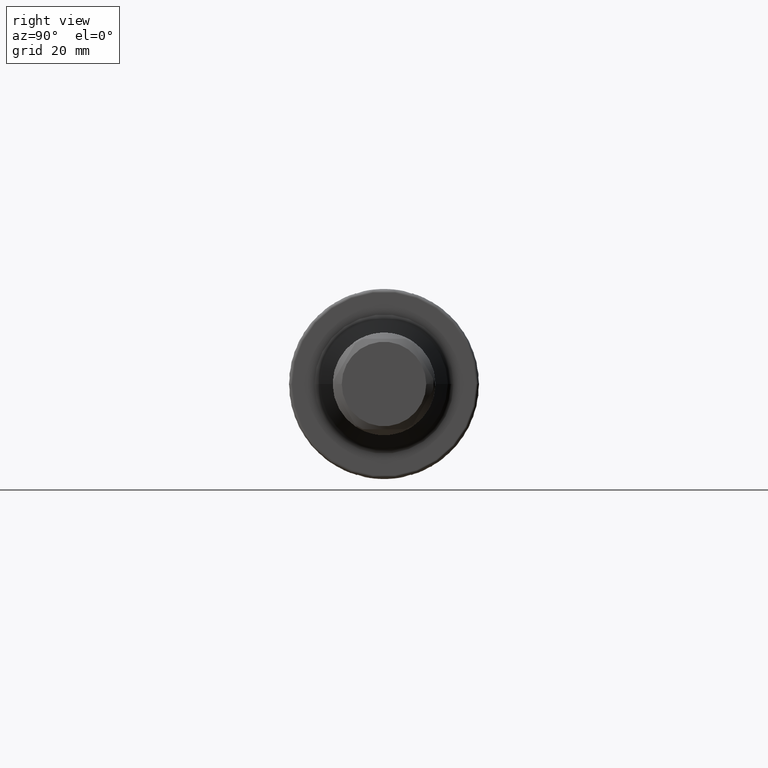
[diagram: clean part render]
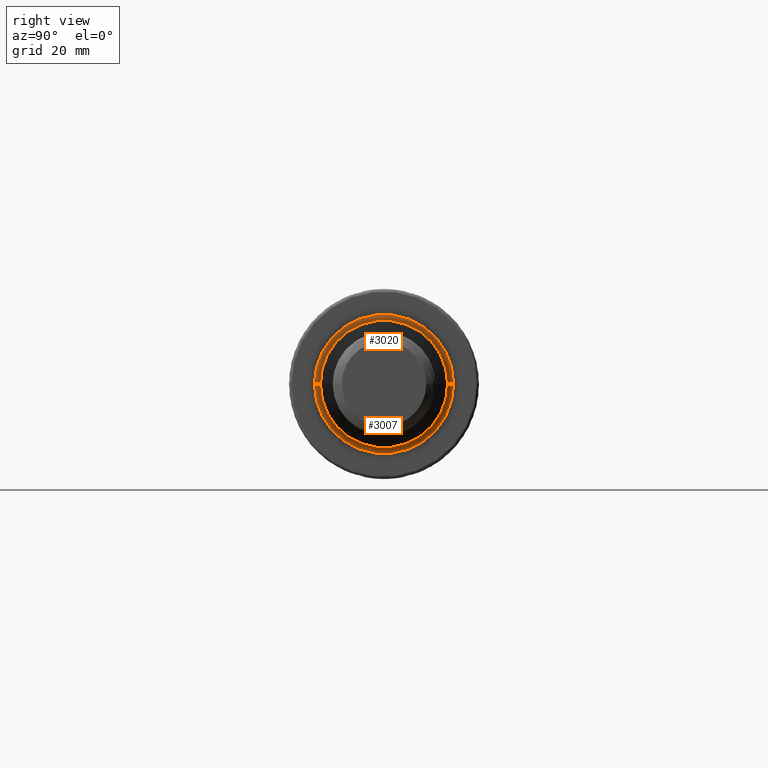
[diagram: same view with one multi-face feature highlighted, each face labeled with its STEP entity id]
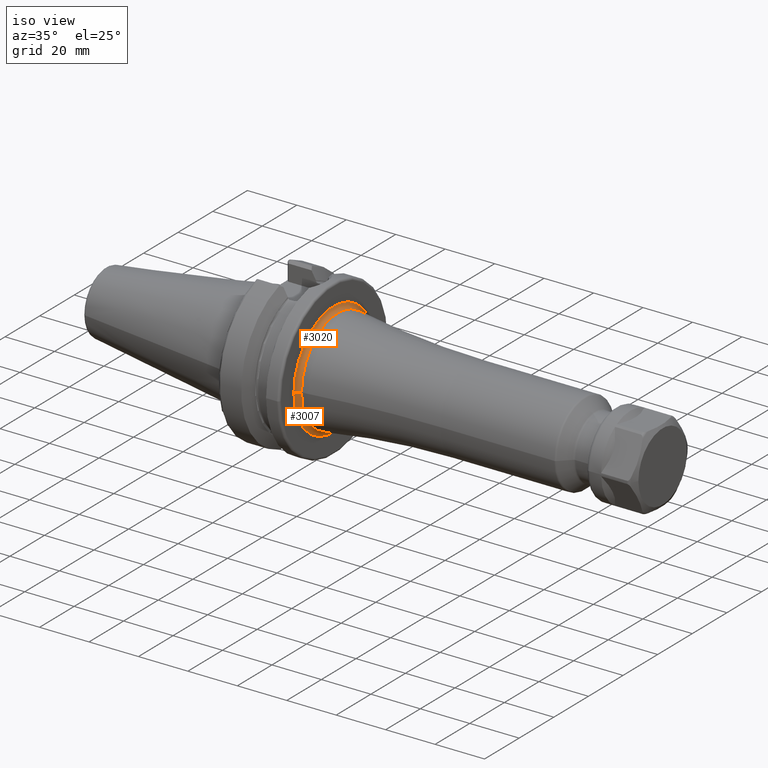
[diagram: same view with one multi-face feature highlighted, each face labeled with its STEP entity id]
A machine part, right view. The highlighted faces form ONE feature: a constant-radius fillet chain: 2 tangent blend faces with common blend radius 2 mm. The faces share edges in the B-rep.
A second angle (iso view) of the same feature is appended — it is thin or edge-on in the first view.
Their STEP definitions:
[1] entity #3007 (Torus):
#2=CARTESIAN_POINT('',(2.7E1,0.E0,0.E0));
#3=DIRECTION('',(1.E0,0.E0,0.E0));
#4=DIRECTION('',(0.E0,-1.E0,0.E0));
#5=AXIS2_PLACEMENT_3D('',#2,#3,#4);
#1066=CARTESIAN_POINT('',(2.9E1,-2.305959818596E1,1.560418461111E-13));
#1067=DIRECTION('',(0.E0,0.E0,-1.E0));
#1068=DIRECTION('',(-1.E0,1.776356839400E-14,0.E0));
#1069=AXIS2_PLACEMENT_3D('',#1066,#1067,#1068);
#1071=CARTESIAN_POINT('',(2.9E1,2.305959818596E1,-1.592337373069E-13));
#1072=DIRECTION('',(0.E0,0.E0,1.E0));
#1073=DIRECTION('',(-1.E0,-1.776356839400E-14,0.E0));
#1074=AXIS2_PLACEMENT_3D('',#1071,#1072,#1073);
#1081=CARTESIAN_POINT('',(2.869540229885E1,0.E0,0.E0));
#1082=DIRECTION('',(1.E0,0.E0,0.E0));
#1083=DIRECTION('',(0.E0,-1.E0,0.E0));
#1084=AXIS2_PLACEMENT_3D('',#1081,#1082,#1083);
#1505=CARTESIAN_POINT('',(2.7E1,-2.305959818596E1,-1.231790693643E-13));
#1506=CARTESIAN_POINT('',(2.7E1,2.305959818596E1,1.203550830535E-13));
#1507=VERTEX_POINT('',#1505);
#1508=VERTEX_POINT('',#1506);
#1509=CARTESIAN_POINT('',(2.869540229885E1,-2.108292921002E1,0.E0));
#1510=CARTESIAN_POINT('',(2.869540229885E1,2.108292921002E1,0.E0));
#1511=VERTEX_POINT('',#1509);
#1512=VERTEX_POINT('',#1510);
#2993=CARTESIAN_POINT('',(2.9E1,0.E0,0.E0));
#2994=DIRECTION('',(1.E0,0.E0,0.E0));
#2995=DIRECTION('',(0.E0,-9.999638690302E-1,8.500625520797E-3));
#2996=AXIS2_PLACEMENT_3D('',#2993,#2994,#2995);
#2997=TOROIDAL_SURFACE('',#2996,2.305959818596E1,2.E0);
#2998=ORIENTED_EDGE('',*,*,#1524,.F.);
#3000=ORIENTED_EDGE('',*,*,#2999,.T.);
#3002=ORIENTED_EDGE('',*,*,#3001,.T.);
#3004=ORIENTED_EDGE('',*,*,#3003,.F.);
#3005=EDGE_LOOP('',(#2998,#3000,#3002,#3004));
#3006=FACE_OUTER_BOUND('',#3005,.F.);
#3007=ADVANCED_FACE('',(#3006),#2997,.F.);
#6=CIRCLE('',#5,2.305959818596E1);
#1070=CIRCLE('',#1069,2.E0);
#1075=CIRCLE('',#1074,2.E0);
#1085=CIRCLE('',#1084,2.108292921002E1);
#1524=EDGE_CURVE('',#1507,#1508,#6,.T.);
#2999=EDGE_CURVE('',#1507,#1511,#1070,.T.);
#3001=EDGE_CURVE('',#1511,#1512,#1085,.T.);
#3003=EDGE_CURVE('',#1508,#1512,#1075,.T.);
[2] entity #3020 (Torus):
#7=CARTESIAN_POINT('',(2.7E1,0.E0,0.E0));
#8=DIRECTION('',(1.E0,0.E0,0.E0));
#9=DIRECTION('',(0.E0,1.E0,0.E0));
#10=AXIS2_PLACEMENT_3D('',#7,#8,#9);
#1066=CARTESIAN_POINT('',(2.9E1,-2.305959818596E1,1.560418461111E-13));
#1067=DIRECTION('',(0.E0,0.E0,-1.E0));
#1068=DIRECTION('',(-1.E0,1.776356839400E-14,0.E0));
#1069=AXIS2_PLACEMENT_3D('',#1066,#1067,#1068);
#1071=CARTESIAN_POINT('',(2.9E1,2.305959818596E1,-1.592337373069E-13));
#1072=DIRECTION('',(0.E0,0.E0,1.E0));
#1073=DIRECTION('',(-1.E0,-1.776356839400E-14,0.E0));
#1074=AXIS2_PLACEMENT_3D('',#1071,#1072,#1073);
#1076=CARTESIAN_POINT('',(2.869540229885E1,0.E0,0.E0));
#1077=DIRECTION('',(1.E0,0.E0,0.E0));
#1078=DIRECTION('',(0.E0,1.E0,0.E0));
#1079=AXIS2_PLACEMENT_3D('',#1076,#1077,#1078);
#1505=CARTESIAN_POINT('',(2.7E1,-2.305959818596E1,-1.231790693643E-13));
#1506=CARTESIAN_POINT('',(2.7E1,2.305959818596E1,1.203550830535E-13));
#1507=VERTEX_POINT('',#1505);
#1508=VERTEX_POINT('',#1506);
#1509=CARTESIAN_POINT('',(2.869540229885E1,-2.108292921002E1,0.E0));
#1510=CARTESIAN_POINT('',(2.869540229885E1,2.108292921002E1,0.E0));
#1511=VERTEX_POINT('',#1509);
#1512=VERTEX_POINT('',#1510);
#3008=CARTESIAN_POINT('',(2.9E1,0.E0,0.E0));
#3009=DIRECTION('',(1.E0,0.E0,0.E0));
#3010=DIRECTION('',(0.E0,9.999638690302E-1,-8.500625520797E-3));
#3011=AXIS2_PLACEMENT_3D('',#3008,#3009,#3010);
#3012=TOROIDAL_SURFACE('',#3011,2.305959818596E1,2.E0);
#3013=ORIENTED_EDGE('',*,*,#1526,.F.);
#3014=ORIENTED_EDGE('',*,*,#3003,.T.);
#3016=ORIENTED_EDGE('',*,*,#3015,.T.);
#3017=ORIENTED_EDGE('',*,*,#2999,.F.);
#3018=EDGE_LOOP('',(#3013,#3014,#3016,#3017));
#3019=FACE_OUTER_BOUND('',#3018,.F.);
#3020=ADVANCED_FACE('',(#3019),#3012,.F.);
#11=CIRCLE('',#10,2.305959818596E1);
#1070=CIRCLE('',#1069,2.E0);
#1075=CIRCLE('',#1074,2.E0);
#1080=CIRCLE('',#1079,2.108292921002E1);
#1526=EDGE_CURVE('',#1508,#1507,#11,.T.);
#2999=EDGE_CURVE('',#1507,#1511,#1070,.T.);
#3003=EDGE_CURVE('',#1508,#1512,#1075,.T.);
#3015=EDGE_CURVE('',#1512,#1511,#1080,.T.);